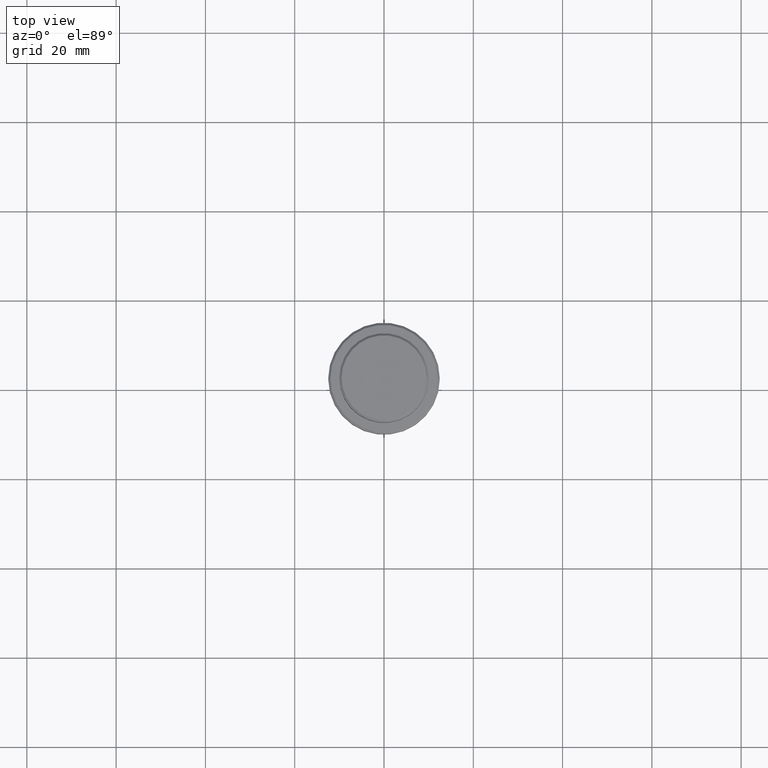
[diagram: clean part render]
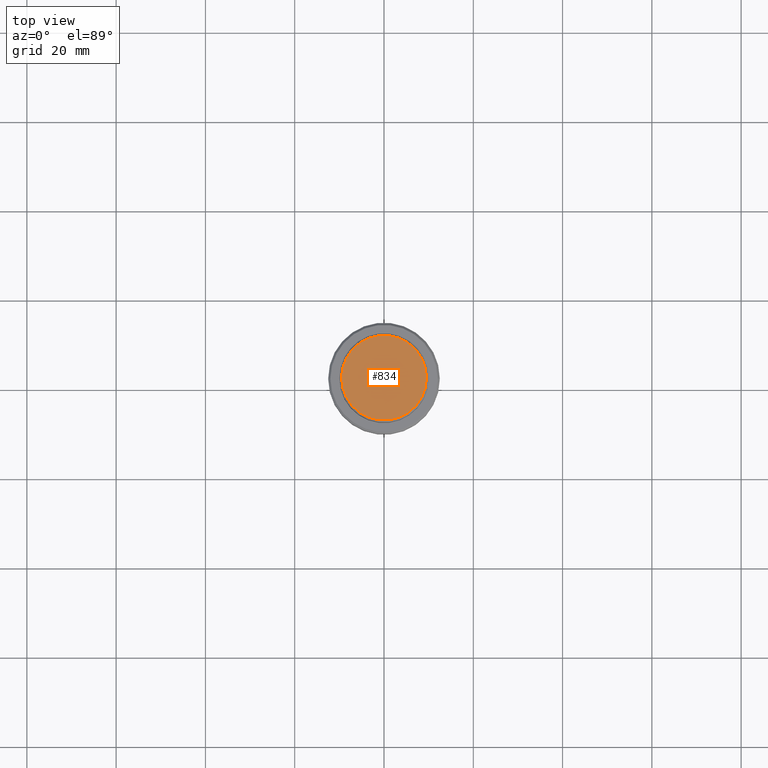
[diagram: same view with one face highlighted and labeled with its STEP entity id]
A machine part, top view. The second image highlights one B-rep face of the part: STEP entity #834.
In plain terms, the highlighted planar face has unit normal (0, -0, 1).
Its self-contained STEP definition (entity closure, byte-faithful):
#24 = CARTESIAN_POINT ( 'NONE',  ( 0.000000000000000000, 0.000000000000000000, 0.000000000000000000 ) ) ;
#131 = CARTESIAN_POINT ( 'NONE',  ( 0.000000000000000000, 0.000000000000000000, 0.000000000000000000 ) ) ;
#135 = DIRECTION ( 'NONE',  ( -0.000000000000000000, -0.000000000000000000, 1.000000000000000000 ) ) ;
#140 = DIRECTION ( 'NONE',  ( -0.000000000000000000, -0.000000000000000000, 1.000000000000000000 ) ) ;
#213 = VERTEX_POINT ( 'NONE', #1163 ) ;
#271 = EDGE_LOOP ( 'NONE', ( #381, #1371 ) ) ;
#293 = VERTEX_POINT ( 'NONE', #351 ) ;
#329 = CIRCLE ( 'NONE', #730, 9.500000000000023093 ) ;
#349 = FACE_OUTER_BOUND ( 'NONE', #271, .T. ) ;
#351 = CARTESIAN_POINT ( 'NONE',  ( -9.500000000000023093, 0.000000000000000000, 0.000000000000000000 ) ) ;
#381 = ORIENTED_EDGE ( 'NONE', *, *, #1047, .T. ) ;
#451 = DIRECTION ( 'NONE',  ( 1.000000000000000000, 0.000000000000000000, 0.000000000000000000 ) ) ;
#566 = DIRECTION ( 'NONE',  ( 1.000000000000000000, 0.000000000000000000, 0.000000000000000000 ) ) ;
#668 = EDGE_CURVE ( 'NONE', #213, #293, #1078, .T. ) ;
#730 = AXIS2_PLACEMENT_3D ( 'NONE', #24, #135, #451 ) ;
#834 = ADVANCED_FACE ( 'NONE', ( #349 ), #1209, .T. ) ;
#1047 = EDGE_CURVE ( 'NONE', #293, #213, #329, .T. ) ;
#1055 = AXIS2_PLACEMENT_3D ( 'NONE', #131, #1276, #1265 ) ;
#1078 = CIRCLE ( 'NONE', #1293, 9.500000000000023093 ) ;
#1104 = CARTESIAN_POINT ( 'NONE',  ( 0.000000000000000000, 0.000000000000000000, 0.000000000000000000 ) ) ;
#1163 = CARTESIAN_POINT ( 'NONE',  ( 9.500000000000023093, 1.194030629168670653E-15, 0.000000000000000000 ) ) ;
#1209 = PLANE ( 'NONE',  #1055 ) ;
#1265 = DIRECTION ( 'NONE',  ( 1.000000000000000000, 0.000000000000000000, 0.000000000000000000 ) ) ;
#1276 = DIRECTION ( 'NONE',  ( 0.000000000000000000, -0.000000000000000000, 1.000000000000000000 ) ) ;
#1293 = AXIS2_PLACEMENT_3D ( 'NONE', #1104, #140, #566 ) ;
#1371 = ORIENTED_EDGE ( 'NONE', *, *, #668, .T. ) ;